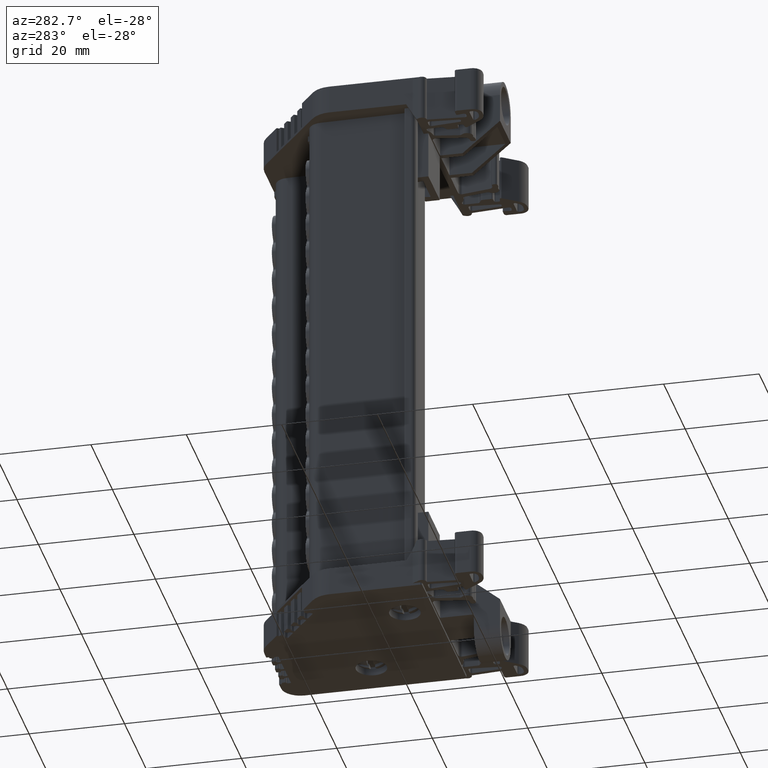
[diagram: clean part render]
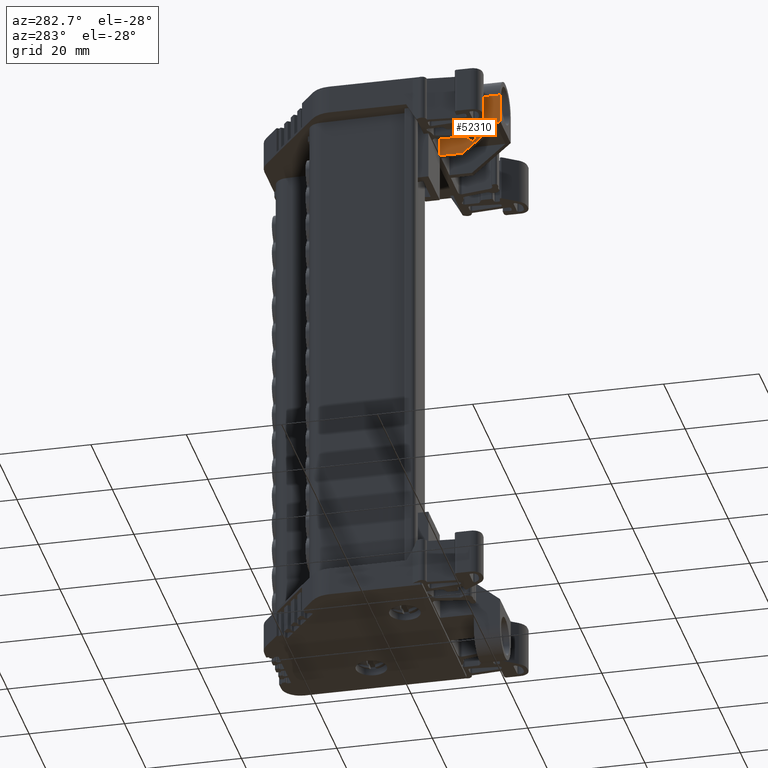
[diagram: same view with one face highlighted and labeled with its STEP entity id]
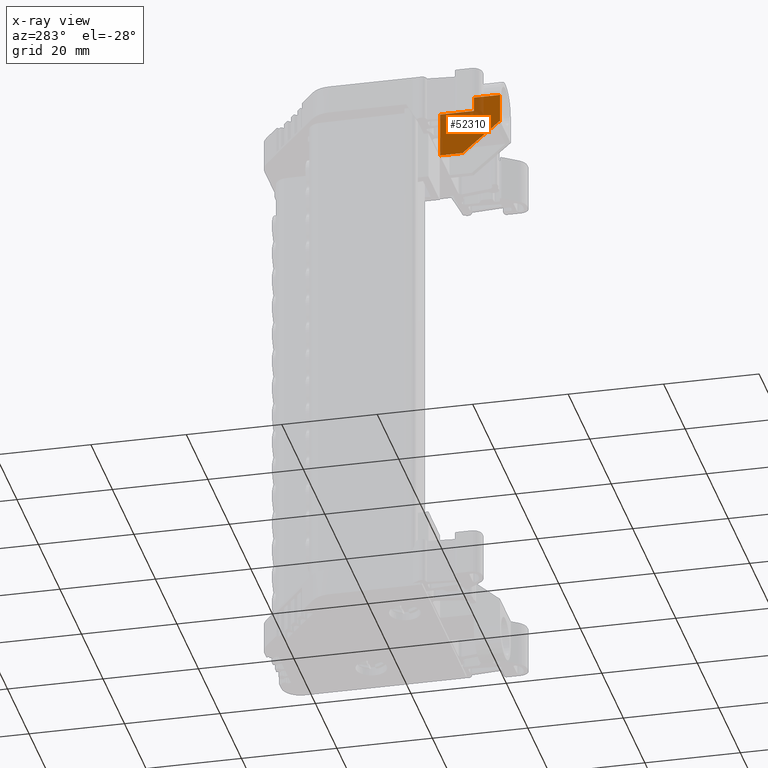
[diagram: x-ray of the same camera — body ghosted, the highlighted face saturated]
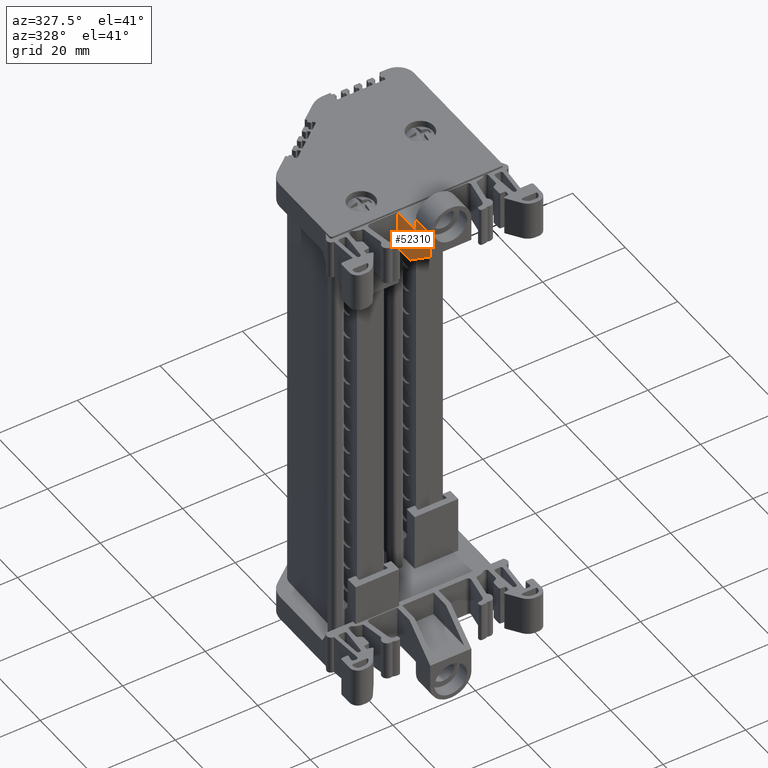
[diagram: same view with one face highlighted and labeled with its STEP entity id]
A machine part, auxiliary view. The second image highlights one B-rep face of the part: STEP entity #52310.
The next image is the same camera in x-ray: the body ghosted, the highlighted face saturated — about 24% of this face is hidden behind the body in this view.
A second angle (auxiliary view) of the same face is appended — the face is thin or edge-on in the first view.
In plain terms, the highlighted planar face has unit normal (-1, 0, -0).
Its self-contained STEP definition (entity closure, byte-faithful):
#2521 = B_SPLINE_CURVE_WITH_KNOTS ( 'NONE', 3,
 ( #51321, #51349, #51366, #51344 ),
 .UNSPECIFIED., .F., .F.,
 ( 4, 4 ),
 ( 0.0000000000000000000, 1.000000000000000000 ),
 .UNSPECIFIED. ) ;
#9281 = AXIS2_PLACEMENT_3D ( 'NONE', #25123, #25161, #25142 ) ;
#20330 = CARTESIAN_POINT ( 'NONE',  ( -51.80778926014686200, 11.22264432959170800, 65.46663835255145600 ) ) ;
#20427 = LINE ( 'NONE', #20503, #32153 ) ;
#20503 = CARTESIAN_POINT ( 'NONE',  ( -51.80778926014686200, 6.516946316365627800, 65.46663835255145600 ) ) ;
#20583 = DIRECTION ( 'NONE',  ( 0.0000000000000000000, -0.7660444431189803400, 0.6427876096865364800 ) ) ;
#25123 = CARTESIAN_POINT ( 'NONE',  ( -51.80778926014686200, 4.158337002831100200, 78.02954316114539800 ) ) ;
#25126 = PLANE ( 'NONE',  #9281 ) ;
#25142 = DIRECTION ( 'NONE',  ( -2.204761668916855000E-016, -1.000000000000000000, 0.0000000000000000000 ) ) ;
#25161 = DIRECTION ( 'NONE',  ( -1.000000000000000000, 2.204761668916855000E-016, -1.756949432570529700E-030 ) ) ;
#25177 = FACE_OUTER_BOUND ( 'NONE', #57099, .T. ) ;
#25553 = LINE ( 'NONE', #25603, #32151 ) ;
#25583 = DIRECTION ( 'NONE',  ( 2.204761668916855000E-016, 1.000000000000000000, -0.0000000000000000000 ) ) ;
#25603 = CARTESIAN_POINT ( 'NONE',  ( -51.80778926014686200, 4.158337002831100200, 78.02954316114535500 ) ) ;
#25660 = CARTESIAN_POINT ( 'NONE',  ( -51.80778926014686200, -1.325470651713848400, 78.02954316114539800 ) ) ;
#25689 = DIRECTION ( 'NONE',  ( -1.756949432570529700E-030, 3.873654763156722800E-046, 1.000000000000000000 ) ) ;
#25705 = LINE ( 'NONE', #25660, #32172 ) ;
#27050 = EDGE_CURVE ( 'NONE', #61477, #61590, #87132, .T. ) ;
#27448 = EDGE_CURVE ( 'NONE', #61470, #61477, #101438, .T. ) ;
#28380 = VECTOR ( 'NONE', #51289, 1000.000000000000000 ) ;
#32151 = VECTOR ( 'NONE', #25583, 1000.000000000000000 ) ;
#32153 = VECTOR ( 'NONE', #20583, 1000.000000000000100 ) ;
#32172 = VECTOR ( 'NONE', #25689, 1000.000000000000000 ) ;
#51285 = CARTESIAN_POINT ( 'NONE',  ( -51.80778926014686200, 11.22264432959170800, 96.37537240544148200 ) ) ;
#51289 = DIRECTION ( 'NONE',  ( -3.367626247333662800E-062, -4.551983995642022800E-046, -1.000000000000000000 ) ) ;
#51310 = LINE ( 'NONE', #51285, #28380 ) ;
#51321 = CARTESIAN_POINT ( 'NONE',  ( -51.80778926014686200, 6.516946316365627800, 65.46663835255145600 ) ) ;
#51344 = CARTESIAN_POINT ( 'NONE',  ( -51.80778926014686200, 11.22264432959170800, 65.46663835255145600 ) ) ;
#51349 = CARTESIAN_POINT ( 'NONE',  ( -51.80778926014686200, 8.085512320774322200, 65.46663835255145600 ) ) ;
#51366 = CARTESIAN_POINT ( 'NONE',  ( -51.80778926014686200, 9.654078325183014900, 65.46663835255145600 ) ) ;
#52310 = ADVANCED_FACE ( 'NONE', ( #25177 ), #25126, .T. ) ;
#57099 = EDGE_LOOP ( 'NONE', ( #80816, #80837, #80854, #80984, #80955, #80980, #80951 ) ) ;
#58689 = EDGE_CURVE ( 'NONE', #61590, #84498, #51310, .T. ) ;
#58691 = EDGE_CURVE ( 'NONE', #61453, #84498, #2521, .T. ) ;
#61444 = VERTEX_POINT ( 'NONE', #73112 ) ;
#61453 = VERTEX_POINT ( 'NONE', #73113 ) ;
#61470 = VERTEX_POINT ( 'NONE', #73097 ) ;
#61477 = VERTEX_POINT ( 'NONE', #73087 ) ;
#61590 = VERTEX_POINT ( 'NONE', #73187 ) ;
#61605 = VERTEX_POINT ( 'NONE', #73182 ) ;
#65563 = VECTOR ( 'NONE', #101398, 1000.000000000000000 ) ;
#66927 = VECTOR ( 'NONE', #87164, 1000.000000000000000 ) ;
#73087 = CARTESIAN_POINT ( 'NONE',  ( -51.80778926014686200, 4.158337002831100200, 74.93866975585649500 ) ) ;
#73097 = CARTESIAN_POINT ( 'NONE',  ( -51.80778926014686900, 4.158337002831101100, 78.02954316114536900 ) ) ;
#73112 = CARTESIAN_POINT ( 'NONE',  ( -51.80778926014686900, -1.325470651713867000, 78.02954316114535500 ) ) ;
#73113 = CARTESIAN_POINT ( 'NONE',  ( -51.80778926014686200, 6.516946316365627800, 65.46663835255145600 ) ) ;
#73182 = CARTESIAN_POINT ( 'NONE',  ( -51.80778926014686200, -1.325470651713847500, 72.04720753800533800 ) ) ;
#73187 = CARTESIAN_POINT ( 'NONE',  ( -51.80778926014686200, 11.22264432959170800, 74.93866975585649500 ) ) ;
#80816 = ORIENTED_EDGE ( 'NONE', *, *, #84495, .T. ) ;
#80837 = ORIENTED_EDGE ( 'NONE', *, *, #84567, .T. ) ;
#80854 = ORIENTED_EDGE ( 'NONE', *, *, #84544, .T. ) ;
#80951 = ORIENTED_EDGE ( 'NONE', *, *, #58691, .F. ) ;
#80955 = ORIENTED_EDGE ( 'NONE', *, *, #27050, .T. ) ;
#80980 = ORIENTED_EDGE ( 'NONE', *, *, #58689, .T. ) ;
#80984 = ORIENTED_EDGE ( 'NONE', *, *, #27448, .T. ) ;
#84495 = EDGE_CURVE ( 'NONE', #61453, #61605, #20427, .T. ) ;
#84498 = VERTEX_POINT ( 'NONE', #20330 ) ;
#84544 = EDGE_CURVE ( 'NONE', #61444, #61470, #25553, .T. ) ;
#84567 = EDGE_CURVE ( 'NONE', #61605, #61444, #25705, .T. ) ;
#87132 = LINE ( 'NONE', #87144, #66927 ) ;
#87144 = CARTESIAN_POINT ( 'NONE',  ( -51.80778926014686200, 4.158337002831100200, 74.93866975585649500 ) ) ;
#87164 = DIRECTION ( 'NONE',  ( 2.204761668916855000E-016, 1.000000000000000000, -0.0000000000000000000 ) ) ;
#101398 = DIRECTION ( 'NONE',  ( 1.756949432570529700E-030, -3.873654763156722800E-046, -1.000000000000000000 ) ) ;
#101404 = CARTESIAN_POINT ( 'NONE',  ( -51.80778926014686200, 4.158337002831101100, 78.02954316114539800 ) ) ;
#101438 = LINE ( 'NONE', #101404, #65563 ) ;